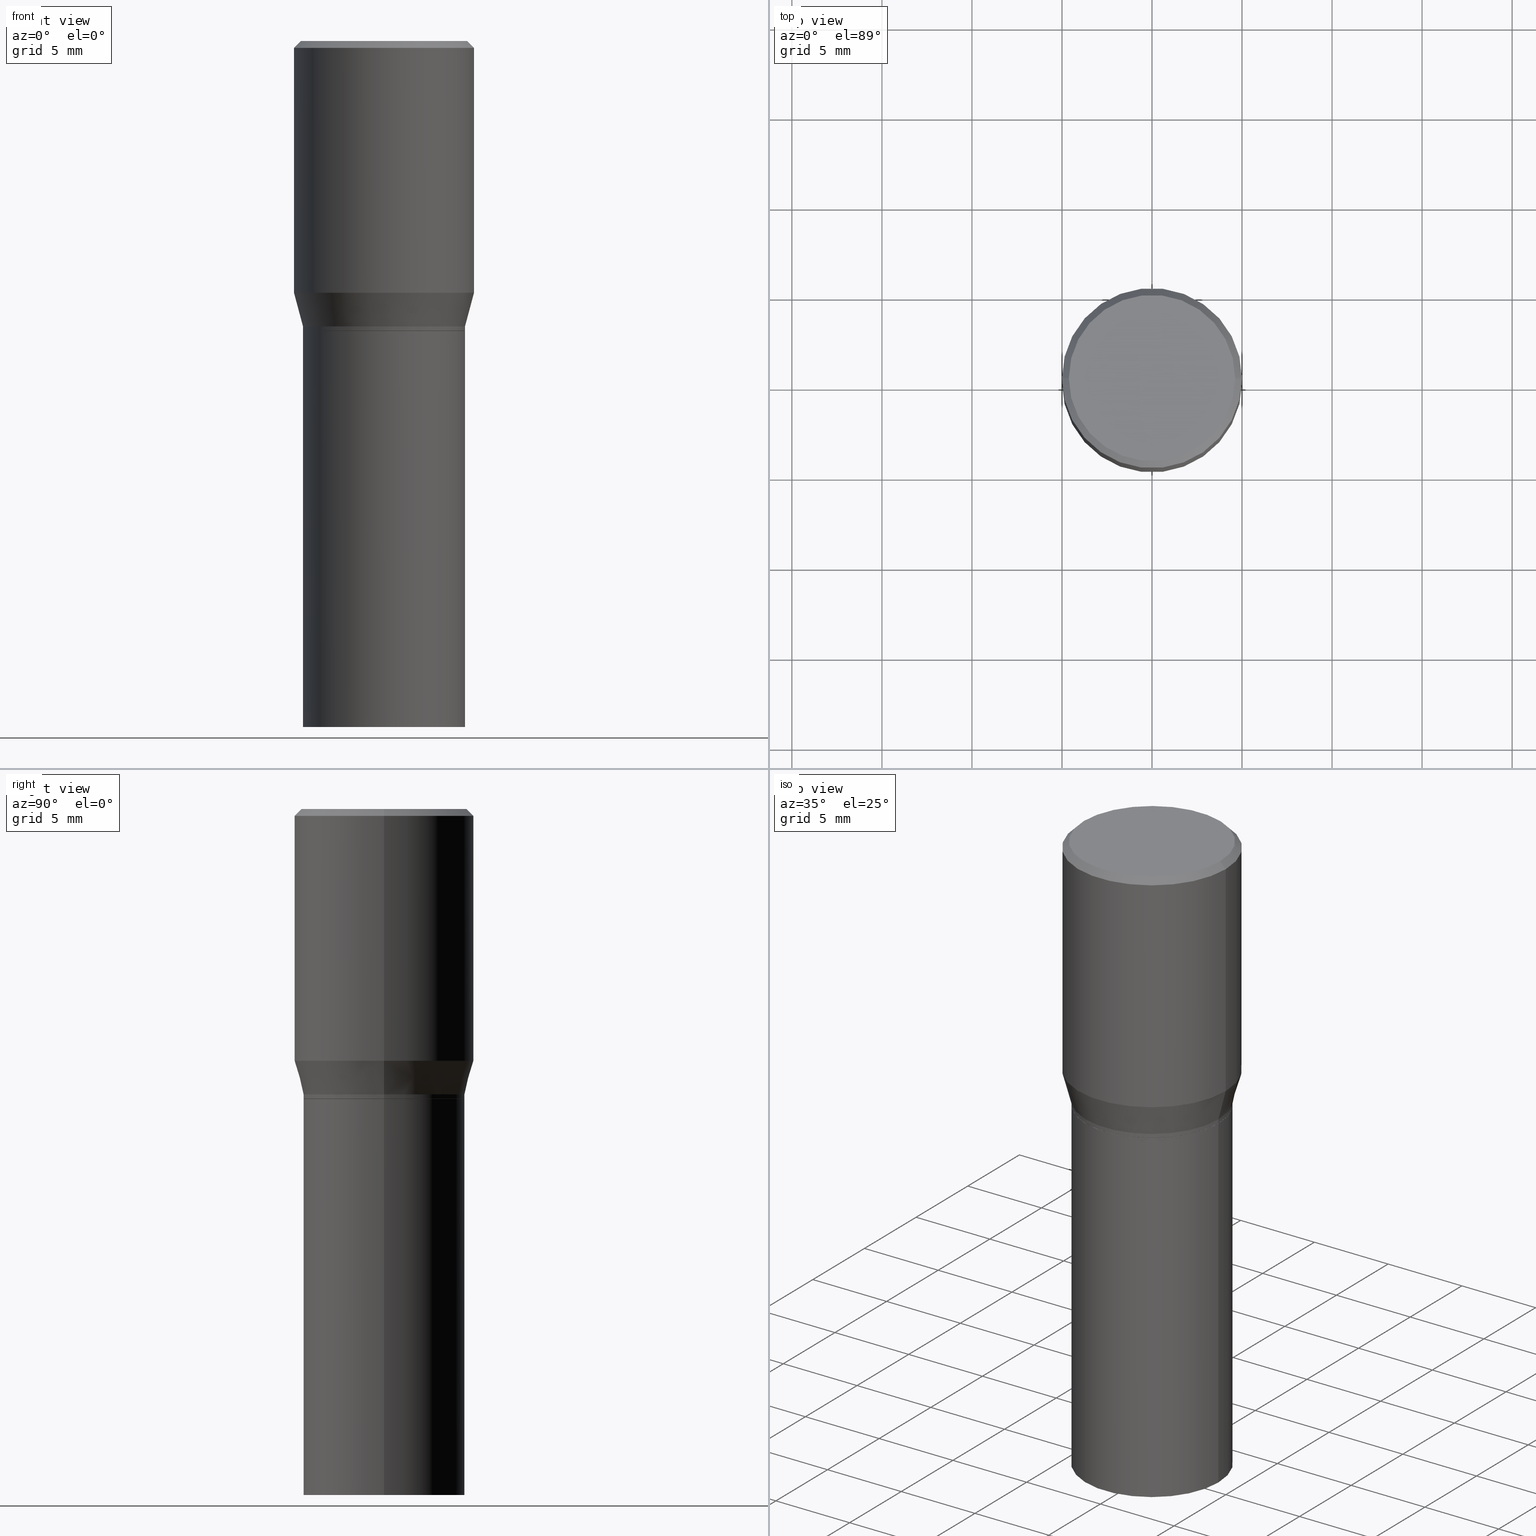
[diagram: canonical four-view strip — front | top / right | iso, engineering-drawing reading convention]
A machine part, canonical four-view strip (front | top / right | iso — engineering-drawing reading convention). The complete STEP part file that produces these views, byte-faithful:
ISO-10303-21;
HEADER;
FILE_DESCRIPTION (( 'STEP AP203' ),
    '1' );
FILE_NAME ('48768.STEP',
    '2024-03-12T19:47:20',
    ( '' ),
    ( '' ),
    'SwSTEP 2.0',
    'SolidWorks 2023',
    '' );
FILE_SCHEMA (( 'CONFIG_CONTROL_DESIGN' ));
ENDSEC;

DATA;
#1 = ORIENTED_EDGE ( 'NONE', *, *, #97, .F. ) ;
#2 = ORIENTED_EDGE ( 'NONE', *, *, #143, .T. ) ;
#3 = DIRECTION ( 'NONE',  ( -2.445468806185136597E-29, 3.491481338843145583E-15, 1.000000000000000000 ) ) ;
#4 = ADVANCED_FACE ( 'NONE', ( #147 ), #457, .F. ) ;
#5 =( NAMED_UNIT ( * ) SI_UNIT ( $, .STERADIAN. ) SOLID_ANGLE_UNIT ( ) );
#6 = VECTOR ( 'NONE', #331, 39.37007874015748143 ) ;
#7 = CARTESIAN_POINT ( 'NONE',  ( 0.000000000000000000, 0.000000000000000000, 0.000000000000000000 ) ) ;
#8 = FACE_OUTER_BOUND ( 'NONE', #197, .T. ) ;
#9 = VERTEX_POINT ( 'NONE', #292 ) ;
#10 = ORIENTED_EDGE ( 'NONE', *, *, #105, .T. ) ;
#11 = DIRECTION ( 'NONE',  ( 1.000000000000000000, 0.000000000000000000, 0.000000000000000000 ) ) ;
#12 = FACE_OUTER_BOUND ( 'NONE', #234, .T. ) ;
#13 = ADVANCED_FACE ( 'NONE', ( #183 ), #451, .T. ) ;
#14 = DIRECTION ( 'NONE',  ( 1.000000000000000000, -6.982962677686267499E-15, 0.000000000000000000 ) ) ;
#15 = DIRECTION ( 'NONE',  ( -2.445468806185136597E-29, 3.491481338843145583E-15, 1.000000000000000000 ) ) ;
#16 = APPROVAL_ROLE ( '' ) ;
#17 = VECTOR ( 'NONE', #430, 39.37007874015748143 ) ;
#18 = DIRECTION ( 'NONE',  ( -1.000000000000000000, 6.982962677686265922E-15, 0.000000000000000000 ) ) ;
#19 = ORIENTED_EDGE ( 'NONE', *, *, #386, .T. ) ;
#20 = ORIENTED_EDGE ( 'NONE', *, *, #406, .T. ) ;
#21 = AXIS2_PLACEMENT_3D ( 'NONE', #81, #401, #168 ) ;
#22 = CC_DESIGN_APPROVAL ( #441, ( #77 ) ) ;
#23 = DIRECTION ( 'NONE',  ( 1.000000000000000000, -6.982962677686265922E-15, 0.000000000000000000 ) ) ;
#24 = APPROVAL ( #112, 'UNSPECIFIED' ) ;
#25 = LINE ( 'NONE', #444, #435 ) ;
#26 = DIRECTION ( 'NONE',  ( -2.445468806185136597E-29, 3.491481338843145583E-15, 1.000000000000000000 ) ) ;
#27 = CALENDAR_DATE ( 2024, 12, 3 ) ;
#28 = DIRECTION ( 'NONE',  ( -2.445468806185136597E-29, 3.491481338843145583E-15, 1.000000000000000000 ) ) ;
#29 = AXIS2_PLACEMENT_3D ( 'NONE', #307, #174, #436 ) ;
#30 = VERTEX_POINT ( 'NONE', #93 ) ;
#31 = SECURITY_CLASSIFICATION ( '', '', #188 ) ;
#32 = ORIENTED_EDGE ( 'NONE', *, *, #406, .F. ) ;
#33 = EDGE_CURVE ( 'NONE', #172, #384, #299, .T. ) ;
#34 = VERTEX_POINT ( 'NONE', #294 ) ;
#35 = DATE_AND_TIME ( #458, #374 ) ;
#36 = ORIENTED_EDGE ( 'NONE', *, *, #251, .F. ) ;
#37 = UNCERTAINTY_MEASURE_WITH_UNIT (LENGTH_MEASURE( 1.000000000000000082E-05 ), #318, 'distance_accuracy_value', 'NONE');
#38 = CONICAL_SURFACE ( 'NONE', #263, 0.1968500000000000250, 0.7853981633974488341 ) ;
#39 = ORIENTED_EDGE ( 'NONE', *, *, #304, .F. ) ;
#40 = PERSON_AND_ORGANIZATION ( #223, #107 ) ;
#41 = ORIENTED_EDGE ( 'NONE', *, *, #304, .T. ) ;
#42 = ADVANCED_FACE ( 'NONE', ( #204 ), #46, .F. ) ;
#43 = PRODUCT_DEFINITION_SHAPE ( 'NONE', 'NONE',  #77 ) ;
#44 = ORIENTED_EDGE ( 'NONE', *, *, #179, .F. ) ;
#45 = FACE_OUTER_BOUND ( 'NONE', #418, .T. ) ;
#46 = PLANE ( 'NONE',  #94 ) ;
#47 = AXIS2_PLACEMENT_3D ( 'NONE', #284, #411, #100 ) ;
#48 = ORIENTED_EDGE ( 'NONE', *, *, #219, .F. ) ;
#49 = CARTESIAN_POINT ( 'NONE',  ( -0.1771500000000000019, 1.258726456399017493E-15, -8.713893512386565325E-30 ) ) ;
#50 = EDGE_CURVE ( 'NONE', #34, #358, #345, .T. ) ;
#51 = VERTEX_POINT ( 'NONE', #56 ) ;
#52 = DIRECTION ( 'NONE',  ( 1.000000000000000000, -6.982962677686265922E-15, 0.000000000000000000 ) ) ;
#53 = CARTESIAN_POINT ( 'NONE',  ( 1.582769352365941312E-46, -2.259775157835388046E-32, -6.472253288869456262E-18 ) ) ;
#54 = CARTESIAN_POINT ( 'NONE',  ( 1.525727988178907107E-29, -2.178335207304238928E-15, -0.6239000000000001211 ) ) ;
#55 = CARTESIAN_POINT ( 'NONE',  ( 1.525727988178907107E-29, -2.178335207304238928E-15, -0.6239000000000001211 ) ) ;
#56 = CARTESIAN_POINT ( 'NONE',  ( 0.1968500000000000250, -1.426968423185188885E-15, -0.01499999999999999944 ) ) ;
#57 = VECTOR ( 'NONE', #357, 39.37007874015748143 ) ;
#58 = DIRECTION ( 'NONE',  ( -2.445468806185136877E-29, 3.491481338843145188E-15, 1.000000000000000000 ) ) ;
#59 = VERTEX_POINT ( 'NONE', #162 ) ;
#60 = DIRECTION ( 'NONE',  ( 1.000000000000000000, -6.982962677686265922E-15, 0.000000000000000000 ) ) ;
#61 = DIRECTION ( 'NONE',  ( 0.2588190451025220717, 1.565188264969615854E-15, 0.9659258262890678681 ) ) ;
#62 = CARTESIAN_POINT ( 'NONE',  ( 3.668203209277704895E-29, -5.237222008264718177E-15, -1.500000000000000222 ) ) ;
#63 = ORIENTED_EDGE ( 'NONE', *, *, #158, .T. ) ;
#64 = AXIS2_PLACEMENT_3D ( 'NONE', #121, #273, #398 ) ;
#65 = ADVANCED_FACE ( 'NONE', ( #432 ), #268, .T. ) ;
#66 = DIRECTION ( 'NONE',  ( 1.000000000000000000, -6.982962677686267499E-15, 0.000000000000000000 ) ) ;
#67 = DATE_TIME_ROLE ( 'classification_date' ) ;
#68 = ORIENTED_EDGE ( 'NONE', *, *, #199, .F. ) ;
#69 = ORIENTED_EDGE ( 'NONE', *, *, #245, .F. ) ;
#70 = EDGE_CURVE ( 'NONE', #84, #30, #335, .T. ) ;
#71 = VECTOR ( 'NONE', #145, 39.37007874015748854 ) ;
#72 = PERSON_AND_ORGANIZATION_ROLE ( 'creator' ) ;
#73 = APPLICATION_PROTOCOL_DEFINITION ( 'international standard', 'config_control_design', 1994, #161 ) ;
#74 = ORIENTED_EDGE ( 'NONE', *, *, #348, .F. ) ;
#75 = AXIS2_PLACEMENT_3D ( 'NONE', #290, #151, #225 ) ;
#76 = AXIS2_PLACEMENT_3D ( 'NONE', #230, #236, #52 ) ;
#77 = PRODUCT_DEFINITION ( 'UNKNOWN', '', #328, #322 ) ;
#78 = CYLINDRICAL_SURFACE ( 'NONE', #312, 0.1771500000000001129 ) ;
#79 = DIRECTION ( 'NONE',  ( 1.000000000000000000, -6.982962677686265922E-15, 4.876176775795935793E-29 ) ) ;
#80 = FACE_OUTER_BOUND ( 'NONE', #375, .T. ) ;
#81 = CARTESIAN_POINT ( 'NONE',  ( 0.000000000000000000, 0.000000000000000000, 0.000000000000000000 ) ) ;
#82 = CARTESIAN_POINT ( 'NONE',  ( -0.1968500000000000250, 1.322223983019894529E-15, -0.01499999999999999944 ) ) ;
#83 = EDGE_CURVE ( 'NONE', #59, #291, #302, .T. ) ;
#84 = VERTEX_POINT ( 'NONE', #241 ) ;
#85 = FACE_OUTER_BOUND ( 'NONE', #462, .T. ) ;
#86 = DIRECTION ( 'NONE',  ( 1.000000000000000000, -6.982962677686266711E-15, 4.876176775795935793E-29 ) ) ;
#87 = CIRCLE ( 'NONE', #126, 0.1771500000000000019 ) ;
#88 = CYLINDRICAL_SURFACE ( 'NONE', #21, 0.1771500000000000019 ) ;
#89 = DIRECTION ( 'NONE',  ( -2.438088387897960049E-29, 3.491481338843145188E-15, 1.000000000000000000 ) ) ;
#90 = CARTESIAN_POINT ( 'NONE',  ( 0.1771500000000001129, -1.237031838352122986E-15, 8.638147158322505565E-30 ) ) ;
#91 = CARTESIAN_POINT ( 'NONE',  ( 1.582769352365941312E-46, -2.259775157835388046E-32, -6.472253288869456262E-18 ) ) ;
#92 = DIRECTION ( 'NONE',  ( -2.445468806185136597E-29, 3.491481338843145583E-15, 1.000000000000000000 ) ) ;
#93 = CARTESIAN_POINT ( 'NONE',  ( 0.1771500000000000019, -3.450281859044792971E-15, -0.6339000000000001300 ) ) ;
#94 = AXIS2_PLACEMENT_3D ( 'NONE', #116, #89, #79 ) ;
#95 = CIRCLE ( 'NONE', #288, 0.1771500000000000019 ) ;
#96 = PLANE ( 'NONE',  #327 ) ;
#97 = EDGE_CURVE ( 'NONE', #9, #237, #262, .T. ) ;
#98 = PERSON_AND_ORGANIZATION ( #223, #107 ) ;
#99 = AXIS2_PLACEMENT_3D ( 'NONE', #102, #186, #250 ) ;
#100 = DIRECTION ( 'NONE',  ( 1.000000000000000000, -6.982962677686266711E-15, 0.000000000000000000 ) ) ;
#101 = VERTEX_POINT ( 'NONE', #393 ) ;
#102 = CARTESIAN_POINT ( 'NONE',  ( 0.000000000000000000, 0.000000000000000000, 0.000000000000000000 ) ) ;
#103 = ORIENTED_EDGE ( 'NONE', *, *, #348, .T. ) ;
#104 = CARTESIAN_POINT ( 'NONE',  ( 0.1771500000000000852, -3.448536118375371467E-15, -0.6334000000000001851 ) ) ;
#105 = EDGE_CURVE ( 'NONE', #9, #264, #124, .T. ) ;
#106 = ORIENTED_EDGE ( 'NONE', *, *, #386, .F. ) ;
#107 = ORGANIZATION ( 'UNSPECIFIED', 'UNSPECIFIED', '' ) ;
#108 = ORIENTED_EDGE ( 'NONE', *, *, #70, .F. ) ;
#109 = CC_DESIGN_PERSON_AND_ORGANIZATION_ASSIGNMENT ( #349, #416, ( #31 ) ) ;
#110 = VERTEX_POINT ( 'NONE', #104 ) ;
#111 = AXIS2_PLACEMENT_3D ( 'NONE', #445, #138, #66 ) ;
#112 = APPROVAL_STATUS ( 'not_yet_approved' ) ;
#113 = CARTESIAN_POINT ( 'NONE',  ( 0.1968500000000000527, -1.374596203102542003E-15, 9.598753983154302260E-30 ) ) ;
#114 = CC_DESIGN_DATE_AND_TIME_ASSIGNMENT ( #35, #67, ( #31 ) ) ;
#115 = ORIENTED_EDGE ( 'NONE', *, *, #245, .T. ) ;
#116 = CARTESIAN_POINT ( 'NONE',  ( 3.576687321579069994E-29, -5.368277968210015545E-15, -1.500000000000000222 ) ) ;
#117 = DIRECTION ( 'NONE',  ( 1.000000000000000000, -6.982962677686265922E-15, 0.000000000000000000 ) ) ;
#118 = CARTESIAN_POINT ( 'NONE',  ( 1.550182676240758652E-29, -2.213250020692670577E-15, -0.6339000000000001300 ) ) ;
#119 = ORIENTED_EDGE ( 'NONE', *, *, #158, .F. ) ;
#120 = EDGE_LOOP ( 'NONE', ( #260, #36 ) ) ;
#121 = CARTESIAN_POINT ( 'NONE',  ( 1.525727988178907107E-29, -2.178335207304238928E-15, -0.6239000000000001211 ) ) ;
#122 = CARTESIAN_POINT ( 'NONE',  ( -0.1766500000000000015, -9.580762779724535881E-16, -0.6339000000000001300 ) ) ;
#123 = DIRECTION ( 'NONE',  ( -2.445468806185136597E-29, 3.491481338843145583E-15, 1.000000000000000000 ) ) ;
#124 = CIRCLE ( 'NONE', #194, 0.1818500000000000116 ) ;
#125 = DIRECTION ( 'NONE',  ( -2.445468806185136597E-29, 3.491481338843145583E-15, 1.000000000000000000 ) ) ;
#126 = AXIS2_PLACEMENT_3D ( 'NONE', #337, #240, #363 ) ;
#127 = FACE_OUTER_BOUND ( 'NONE', #160, .T. ) ;
#128 = LINE ( 'NONE', #402, #6 ) ;
#129 = ORIENTED_EDGE ( 'NONE', *, *, #372, .T. ) ;
#130 = EDGE_CURVE ( 'NONE', #172, #110, #256, .T. ) ;
#131 = FACE_OUTER_BOUND ( 'NONE', #218, .T. ) ;
#132 = CARTESIAN_POINT ( 'NONE',  ( 1.550182676240758652E-29, -2.213250020692670577E-15, -0.6339000000000001300 ) ) ;
#133 = DIMENSIONAL_EXPONENTS ( 1.000000000000000000, 0.000000000000000000, 0.000000000000000000, 0.000000000000000000, 0.000000000000000000, 0.000000000000000000, 0.000000000000000000 ) ;
#134 = CIRCLE ( 'NONE', #381, 0.1771500000000000019 ) ;
#135 = FACE_OUTER_BOUND ( 'NONE', #354, .T. ) ;
#136 = EDGE_CURVE ( 'NONE', #84, #101, #95, .T. ) ;
#137 = ORIENTED_EDGE ( 'NONE', *, *, #412, .F. ) ;
#138 = DIRECTION ( 'NONE',  ( -2.445468806185136597E-29, 3.491481338843145583E-15, 1.000000000000000000 ) ) ;
#139 = ORIENTED_EDGE ( 'NONE', *, *, #400, .T. ) ;
#140 = AXIS2_PLACEMENT_3D ( 'NONE', #440, #383, #460 ) ;
#141 = AXIS2_PLACEMENT_3D ( 'NONE', #369, #403, #206 ) ;
#142 = CIRCLE ( 'NONE', #187, 0.1771500000000001129 ) ;
#143 = EDGE_CURVE ( 'NONE', #264, #51, #128, .T. ) ;
#144 = ORIENTED_EDGE ( 'NONE', *, *, #199, .T. ) ;
#145 = DIRECTION ( 'NONE',  ( -0.2588190451025220717, 5.211531920934554197E-15, 0.9659258262890678681 ) ) ;
#146 = DATE_AND_TIME ( #380, #414 ) ;
#147 = FACE_OUTER_BOUND ( 'NONE', #120, .T. ) ;
#148 = ADVANCED_FACE ( 'NONE', ( #407 ), #338, .F. ) ;
#149 = APPROVAL_DATE_TIME ( #146, #356 ) ;
#150 = PRODUCT ( '48768', '48768', '', ( #238 ) ) ;
#151 = DIRECTION ( 'NONE',  ( -2.438088387897960049E-29, 3.491481338843145188E-15, 1.000000000000000000 ) ) ;
#152 = COORDINATED_UNIVERSAL_TIME_OFFSET ( 5, 0, .BEHIND. ) ;
#153 = APPLICATION_CONTEXT ( 'configuration controlled 3d designs of mechanical parts and assemblies' ) ;
#154 = COORDINATED_UNIVERSAL_TIME_OFFSET ( 5, 0, .BEHIND. ) ;
#155 = AXIS2_PLACEMENT_3D ( 'NONE', #276, #242, #438 ) ;
#156 = LOCAL_TIME ( 15, 47, 20.00000000000000000, #317 ) ;
#157 = EDGE_LOOP ( 'NONE', ( #10, #139 ) ) ;
#158 = EDGE_CURVE ( 'NONE', #384, #59, #270, .T. ) ;
#159 = DIRECTION ( 'NONE',  ( -2.445468806185136597E-29, 3.491481338843145583E-15, 1.000000000000000000 ) ) ;
#160 = EDGE_LOOP ( 'NONE', ( #32, #259, #41, #320 ) ) ;
#161 = APPLICATION_CONTEXT ( 'configuration controlled 3d designs of mechanical parts and assemblies' ) ;
#162 = CARTESIAN_POINT ( 'NONE',  ( -0.1771500000000000852, -9.527778236242309889E-16, -0.6334000000000001851 ) ) ;
#163 = AXIS2_PLACEMENT_3D ( 'NONE', #306, #326, #14 ) ;
#164 = ADVANCED_FACE ( 'NONE', ( #85 ), #413, .T. ) ;
#165 = CIRCLE ( 'NONE', #408, 0.1818500000000000116 ) ;
#166 = LOCAL_TIME ( 15, 47, 20.00000000000000000, #154 ) ;
#167 = DIRECTION ( 'NONE',  ( -2.445468806185136877E-29, 3.491481338843145188E-15, 1.000000000000000000 ) ) ;
#168 = DIRECTION ( 'NONE',  ( 1.000000000000000000, -6.982962677686266711E-15, 4.876176775795935793E-29 ) ) ;
#169 = MANIFOLD_SOLID_BREP ( 'Body-Move/Copy2[1]', #425 ) ;
#170 = LINE ( 'NONE', #247, #257 ) ;
#171 = CONICAL_SURFACE ( 'NONE', #228, 0.1766500000000000015, 0.7853981633974824739 ) ;
#172 = VERTEX_POINT ( 'NONE', #355 ) ;
#173 = ADVANCED_FACE ( 'NONE', ( #45 ), #38, .T. ) ;
#174 = DIRECTION ( 'NONE',  ( -2.445468806185136597E-29, 3.491481338843145583E-15, 1.000000000000000000 ) ) ;
#175 = LINE ( 'NONE', #113, #57 ) ;
#176 = DIRECTION ( 'NONE',  ( -2.445468806185136597E-29, 3.491481338843145583E-15, 1.000000000000000000 ) ) ;
#177 = LENGTH_MEASURE_WITH_UNIT ( LENGTH_MEASURE( 0.02539999999999999897 ), #282 );
#178 = ORIENTED_EDGE ( 'NONE', *, *, #192, .F. ) ;
#179 = EDGE_CURVE ( 'NONE', #34, #237, #170, .T. ) ;
#180 = CYLINDRICAL_SURFACE ( 'NONE', #420, 0.1771500000000000019 ) ;
#181 = VECTOR ( 'NONE', #167, 39.37007874015748143 ) ;
#182 = AXIS2_PLACEMENT_3D ( 'NONE', #301, #243, #365 ) ;
#183 = FACE_OUTER_BOUND ( 'NONE', #456, .T. ) ;
#184 = EDGE_LOOP ( 'NONE', ( #279, #289, #424, #137 ) ) ;
#185 = AXIS2_PLACEMENT_3D ( 'NONE', #297, #28, #117 ) ;
#186 = DIRECTION ( 'NONE',  ( -2.445468806185136597E-29, 3.491481338843145583E-15, 1.000000000000000000 ) ) ;
#187 = AXIS2_PLACEMENT_3D ( 'NONE', #55, #92, #205 ) ;
#188 = SECURITY_CLASSIFICATION_LEVEL ( 'unclassified' ) ;
#189 = CARTESIAN_POINT ( 'NONE',  ( 0.000000000000000000, 0.000000000000000000, 0.000000000000000000 ) ) ;
#190 = DATE_AND_TIME ( #27, #156 ) ;
#191 = ORIENTED_EDGE ( 'NONE', *, *, #136, .T. ) ;
#192 = EDGE_CURVE ( 'NONE', #110, #385, #305, .T. ) ;
#193 = APPROVAL_DATE_TIME ( #190, #441 ) ;
#194 = AXIS2_PLACEMENT_3D ( 'NONE', #91, #298, #347 ) ;
#195 = CIRCLE ( 'NONE', #200, 0.1968500000000000250 ) ;
#196 = LOCAL_TIME ( 15, 47, 20.00000000000000000, #364 ) ;
#197 = EDGE_LOOP ( 'NONE', ( #191, #300, #340, #108 ) ) ;
#198 = CARTESIAN_POINT ( 'NONE',  ( 1.550182676240758652E-29, -2.213250020692670577E-15, -0.6339000000000001300 ) ) ;
#199 = EDGE_CURVE ( 'NONE', #358, #34, #319, .T. ) ;
#200 = AXIS2_PLACEMENT_3D ( 'NONE', #211, #220, #23 ) ;
#201 = CC_DESIGN_SECURITY_CLASSIFICATION ( #31, ( #328 ) ) ;
#202 = ORIENTED_EDGE ( 'NONE', *, *, #400, .F. ) ;
#203 = ADVANCED_FACE ( 'NONE', ( #127 ), #323, .T. ) ;
#204 = FACE_OUTER_BOUND ( 'NONE', #439, .T. ) ;
#205 = DIRECTION ( 'NONE',  ( 1.000000000000000000, -6.982962677686265922E-15, 0.000000000000000000 ) ) ;
#206 = DIRECTION ( 'NONE',  ( 1.000000000000000000, -6.982962677686266711E-15, 0.000000000000000000 ) ) ;
#207 = CC_DESIGN_PERSON_AND_ORGANIZATION_ASSIGNMENT ( #217, #72, ( #328 ) ) ;
#208 = AXIS2_PLACEMENT_3D ( 'NONE', #198, #123, #366 ) ;
#209 = DIRECTION ( 'NONE',  ( 1.000000000000000000, -6.982962677686266711E-15, 4.876176775795935793E-29 ) ) ;
#210 = ADVANCED_FACE ( 'NONE', ( #310 ), #452, .T. ) ;
#211 = CARTESIAN_POINT ( 'NONE',  ( 3.668203209277705088E-31, -5.237222008264718399E-17, -0.01499999999999999944 ) ) ;
#212 = ORIENTED_EDGE ( 'NONE', *, *, #278, .F. ) ;
#213 = APPROVAL_PERSON_ORGANIZATION ( #303, #24, #16 ) ;
#214 = DIRECTION ( 'NONE',  ( -1.000000000000000000, 6.982962677686265922E-15, -4.876176775795935793E-29 ) ) ;
#215 = PERSON_AND_ORGANIZATION ( #223, #107 ) ;
#216 = ADVANCED_FACE ( 'NONE', ( #135 ), #280, .T. ) ;
#217 = PERSON_AND_ORGANIZATION ( #223, #107 ) ;
#218 = EDGE_LOOP ( 'NONE', ( #309, #63, #74, #269 ) ) ;
#219 = EDGE_CURVE ( 'NONE', #101, #376, #359, .T. ) ;
#220 = DIRECTION ( 'NONE',  ( -2.445468806185136597E-29, 3.491481338843145583E-15, 1.000000000000000000 ) ) ;
#221 = PERSON_AND_ORGANIZATION_ROLE ( 'creator' ) ;
#222 = CARTESIAN_POINT ( 'NONE',  ( 0.1766500000000000015, -3.446790377705949964E-15, -0.6339000000000001300 ) ) ;
#223 = PERSON ( 'UNSPECIFIED', 'UNSPECIFIED', 'UNSPECIFIED', ('UNSPECIFIED'), ('UNSPECIFIED'), ('UNSPECIFIED') ) ;
#224 = ADVANCED_FACE ( 'NONE', ( #12 ), #283, .T. ) ;
#225 = DIRECTION ( 'NONE',  ( 1.000000000000000000, -6.982962677686265922E-15, 4.876176775795935793E-29 ) ) ;
#226 = ORIENTED_EDGE ( 'NONE', *, *, #105, .F. ) ;
#227 = PERSON_AND_ORGANIZATION ( #223, #107 ) ;
#228 = AXIS2_PLACEMENT_3D ( 'NONE', #132, #3, #265 ) ;
#229 = DIRECTION ( 'NONE',  ( 0.000000000000000000, 0.000000000000000000, 1.000000000000000000 ) ) ;
#230 = CARTESIAN_POINT ( 'NONE',  ( 1.525727988178907107E-29, -2.178335207304238928E-15, -0.6239000000000001211 ) ) ;
#231 = ADVANCED_FACE ( 'NONE', ( #254 ), #96, .F. ) ;
#232 = DIRECTION ( 'NONE',  ( -0.7071067811865479058, 2.468850131082261005E-15, -0.7071067811865471286 ) ) ;
#233 = CIRCLE ( 'NONE', #64, 0.1771500000000001129 ) ;
#234 = EDGE_LOOP ( 'NONE', ( #44, #446, #19, #267 ) ) ;
#235 =( NAMED_UNIT ( * ) PLANE_ANGLE_UNIT ( ) SI_UNIT ( $, .RADIAN. ) );
#236 = DIRECTION ( 'NONE',  ( -2.445468806185136597E-29, 3.491481338843145583E-15, 1.000000000000000000 ) ) ;
#237 = VERTEX_POINT ( 'NONE', #379 ) ;
#238 = MECHANICAL_CONTEXT ( 'NONE', #161, 'mechanical' ) ;
#239 = EDGE_CURVE ( 'NONE', #101, #84, #134, .T. ) ;
#240 = DIRECTION ( 'NONE',  ( -2.445468806185136597E-29, 3.491481338843145583E-15, 1.000000000000000000 ) ) ;
#241 = CARTESIAN_POINT ( 'NONE',  ( 0.1771500000000000019, -6.474253846616840571E-15, -1.500000000000000222 ) ) ;
#242 = DIRECTION ( 'NONE',  ( 2.445468806185136597E-29, -3.491481338843145583E-15, -1.000000000000000000 ) ) ;
#243 = DIRECTION ( 'NONE',  ( 2.438088387897960049E-29, -3.491481338843145188E-15, -1.000000000000000000 ) ) ;
#244 = CARTESIAN_POINT ( 'NONE',  ( 0.1968500000000000527, -3.296232811127031185E-15, -0.5503785990908939274 ) ) ;
#245 = EDGE_CURVE ( 'NONE', #51, #237, #195, .T. ) ;
#246 = EDGE_LOOP ( 'NONE', ( #274, #226, #370, #252 ) ) ;
#247 = CARTESIAN_POINT ( 'NONE',  ( -0.1968500000000000527, 1.398703375343757590E-15, -9.682923725166785079E-30 ) ) ;
#248 = AXIS2_PLACEMENT_3D ( 'NONE', #7, #125, #275 ) ;
#249 = ORIENTED_EDGE ( 'NONE', *, *, #239, .F. ) ;
#250 = DIRECTION ( 'NONE',  ( 1.000000000000000000, -6.982962677686266711E-15, 4.876176775795935793E-29 ) ) ;
#251 = EDGE_CURVE ( 'NONE', #384, #172, #388, .T. ) ;
#252 = ORIENTED_EDGE ( 'NONE', *, *, #311, .T. ) ;
#253 = APPROVAL_ROLE ( '' ) ;
#254 = FACE_OUTER_BOUND ( 'NONE', #387, .T. ) ;
#255 = ORIENTED_EDGE ( 'NONE', *, *, #372, .F. ) ;
#256 = LINE ( 'NONE', #222, #463 ) ;
#257 = VECTOR ( 'NONE', #271, 39.37007874015748143 ) ;
#258 = APPROVAL_PERSON_ORGANIZATION ( #98, #356, #455 ) ;
#259 = ORIENTED_EDGE ( 'NONE', *, *, #412, .T. ) ;
#260 = ORIENTED_EDGE ( 'NONE', *, *, #33, .F. ) ;
#261 = CARTESIAN_POINT ( 'NONE',  ( 0.000000000000000000, 0.000000000000000000, 0.000000000000000000 ) ) ;
#262 = LINE ( 'NONE', #82, #308 ) ;
#263 = AXIS2_PLACEMENT_3D ( 'NONE', #368, #334, #18 ) ;
#264 = VERTEX_POINT ( 'NONE', #447 ) ;
#265 = DIRECTION ( 'NONE',  ( 1.000000000000000000, -6.982962677686267499E-15, 0.000000000000000000 ) ) ;
#266 = ORIENTED_EDGE ( 'NONE', *, *, #83, .T. ) ;
#267 = ORIENTED_EDGE ( 'NONE', *, *, #311, .F. ) ;
#268 = CYLINDRICAL_SURFACE ( 'NONE', #248, 0.1771500000000001129 ) ;
#269 = ORIENTED_EDGE ( 'NONE', *, *, #130, .F. ) ;
#270 = LINE ( 'NONE', #122, #373 ) ;
#271 = DIRECTION ( 'NONE',  ( -2.445468806185136877E-29, 3.491481338843145188E-15, 1.000000000000000000 ) ) ;
#272 = CIRCLE ( 'NONE', #185, 0.1968500000000000250 ) ;
#273 = DIRECTION ( 'NONE',  ( -2.445468806185136597E-29, 3.491481338843145583E-15, 1.000000000000000000 ) ) ;
#274 = ORIENTED_EDGE ( 'NONE', *, *, #143, .F. ) ;
#275 = DIRECTION ( 'NONE',  ( 1.000000000000000000, -6.982962677686266711E-15, 4.876176775795935793E-29 ) ) ;
#276 = CARTESIAN_POINT ( 'NONE',  ( 3.668203209277705088E-31, -5.237222008264718399E-17, -0.01499999999999999944 ) ) ;
#277 = CARTESIAN_POINT ( 'NONE',  ( 0.000000000000000000, 0.000000000000000000, 0.000000000000000000 ) ) ;
#278 = EDGE_CURVE ( 'NONE', #59, #110, #295, .T. ) ;
#279 = ORIENTED_EDGE ( 'NONE', *, *, #83, .F. ) ;
#280 = CYLINDRICAL_SURFACE ( 'NONE', #346, 0.1968500000000000527 ) ;
#281 = LINE ( 'NONE', #415, #71 ) ;
#282 =( LENGTH_UNIT ( ) NAMED_UNIT ( * ) SI_UNIT ( $, .METRE. ) );
#283 = CYLINDRICAL_SURFACE ( 'NONE', #99, 0.1968500000000000527 ) ;
#284 = CARTESIAN_POINT ( 'NONE',  ( 1.548959941837665850E-29, -2.211504280023249073E-15, -0.6334000000000001851 ) ) ;
#285 = CLOSED_SHELL ( 'NONE', ( #343, #314, #173, #216, #164, #203, #224, #210, #148, #4, #13, #65 ) ) ;
#286 = DIRECTION ( 'NONE',  ( -2.445468806185136597E-29, 3.491481338843145583E-15, 1.000000000000000000 ) ) ;
#287 = PERSON_AND_ORGANIZATION_ROLE ( 'design_supplier' ) ;
#288 = AXIS2_PLACEMENT_3D ( 'NONE', #421, #465, #423 ) ;
#289 = ORIENTED_EDGE ( 'NONE', *, *, #278, .T. ) ;
#290 = CARTESIAN_POINT ( 'NONE',  ( 1.550182676240758652E-29, -2.213250020692670577E-15, -0.6339000000000001300 ) ) ;
#291 = VERTEX_POINT ( 'NONE', #344 ) ;
#292 = CARTESIAN_POINT ( 'NONE',  ( -0.1818500000000000116, 1.296037872978570989E-15, -6.472253288878428014E-18 ) ) ;
#293 = DIRECTION ( 'NONE',  ( 2.438088387897960049E-29, -3.491481338843145188E-15, -1.000000000000000000 ) ) ;
#294 = CARTESIAN_POINT ( 'NONE',  ( -0.1968500000000000527, -5.229332326807317894E-16, -0.5503785990908939274 ) ) ;
#295 = CIRCLE ( 'NONE', #47, 0.1771500000000000852 ) ;
#296 = CALENDAR_DATE ( 2024, 12, 3 ) ;
#297 = CARTESIAN_POINT ( 'NONE',  ( 3.668203209277705088E-31, -5.237222008264718399E-17, -0.01499999999999999944 ) ) ;
#298 = DIRECTION ( 'NONE',  ( -2.445468806185136597E-29, 3.491481338843145583E-15, 1.000000000000000000 ) ) ;
#299 = CIRCLE ( 'NONE', #140, 0.1766500000000000015 ) ;
#300 = ORIENTED_EDGE ( 'NONE', *, *, #219, .T. ) ;
#301 = CARTESIAN_POINT ( 'NONE',  ( 1.269851762937247450E-15, 0.1818500000000000116, -6.381620081130607218E-16 ) ) ;
#302 = LINE ( 'NONE', #392, #17 ) ;
#303 = PERSON_AND_ORGANIZATION ( #223, #107 ) ;
#304 = EDGE_CURVE ( 'NONE', #385, #358, #25, .T. ) ;
#305 = LINE ( 'NONE', #90, #336 ) ;
#306 = CARTESIAN_POINT ( 'NONE',  ( 1.345933695668656235E-29, -1.921636608024489183E-15, -0.5503785990908939274 ) ) ;
#307 = CARTESIAN_POINT ( 'NONE',  ( 1.345933695668656235E-29, -1.921636608024489183E-15, -0.5503785990908939274 ) ) ;
#308 = VECTOR ( 'NONE', #232, 39.37007874015748143 ) ;
#309 = ORIENTED_EDGE ( 'NONE', *, *, #33, .T. ) ;
#310 = FACE_OUTER_BOUND ( 'NONE', #246, .T. ) ;
#311 = EDGE_CURVE ( 'NONE', #237, #51, #272, .T. ) ;
#312 = AXIS2_PLACEMENT_3D ( 'NONE', #261, #395, #86 ) ;
#313 = CARTESIAN_POINT ( 'NONE',  ( 0.000000000000000000, 0.000000000000000000, 0.000000000000000000 ) ) ;
#314 = ADVANCED_FACE ( 'NONE', ( #131 ), #171, .T. ) ;
#315 = DIRECTION ( 'NONE',  ( 1.000000000000000000, -6.982962677686266711E-15, 0.000000000000000000 ) ) ;
#316 = ORIENTED_EDGE ( 'NONE', *, *, #239, .T. ) ;
#317 = COORDINATED_UNIVERSAL_TIME_OFFSET ( 5, 0, .BEHIND. ) ;
#318 =( CONVERSION_BASED_UNIT ( 'INCH', #177 ) LENGTH_UNIT ( ) NAMED_UNIT ( #133 ) );
#319 = CIRCLE ( 'NONE', #29, 0.1968500000000000527 ) ;
#320 = ORIENTED_EDGE ( 'NONE', *, *, #50, .F. ) ;
#321 = COORDINATED_UNIVERSAL_TIME_OFFSET ( 5, 0, .BEHIND. ) ;
#322 = DESIGN_CONTEXT ( 'detailed design', #153, 'design' ) ;
#323 = CONICAL_SURFACE ( 'NONE', #433, 0.1771500000000001129, 0.2617993877991508511 ) ;
#324 = PERSON_AND_ORGANIZATION_ROLE ( 'design_owner' ) ;
#325 = CARTESIAN_POINT ( 'NONE',  ( 0.1771500000000001129, -3.415367045656361716E-15, -0.6239000000000001211 ) ) ;
#326 = DIRECTION ( 'NONE',  ( -2.445468806185136597E-29, 3.491481338843145583E-15, 1.000000000000000000 ) ) ;
#327 = AXIS2_PLACEMENT_3D ( 'NONE', #371, #293, #214 ) ;
#328 = PRODUCT_DEFINITION_FORMATION_WITH_SPECIFIED_SOURCE ( 'ANY', '', #150, .NOT_KNOWN. ) ;
#329 = PRODUCT_RELATED_PRODUCT_CATEGORY ( 'detail', '', ( #150 ) ) ;
#330 = DATE_AND_TIME ( #429, #196 ) ;
#331 = DIRECTION ( 'NONE',  ( 0.7071067811865479058, -7.319954787623257623E-15, -0.7071067811865471286 ) ) ;
#332 = DIRECTION ( 'NONE',  ( -2.445468806185136877E-29, 3.491481338843145188E-15, 1.000000000000000000 ) ) ;
#333 = APPROVAL_DATE_TIME ( #330, #24 ) ;
#334 = DIRECTION ( 'NONE',  ( 2.445468806185136597E-29, -3.491481338843145583E-15, -1.000000000000000000 ) ) ;
#335 = LINE ( 'NONE', #399, #181 ) ;
#336 = VECTOR ( 'NONE', #58, 39.37007874015748143 ) ;
#337 = CARTESIAN_POINT ( 'NONE',  ( 1.550182676240758652E-29, -2.213250020692670577E-15, -0.6339000000000001300 ) ) ;
#338 = PLANE ( 'NONE',  #182 ) ;
#339 = CARTESIAN_POINT ( 'NONE',  ( -0.1766500000000000015, -9.554270507983421899E-16, -0.6339000000000001300 ) ) ;
#340 = ORIENTED_EDGE ( 'NONE', *, *, #422, .F. ) ;
#341 = ORIENTED_EDGE ( 'NONE', *, *, #251, .T. ) ;
#342 = FACE_OUTER_BOUND ( 'NONE', #404, .T. ) ;
#343 = ADVANCED_FACE ( 'NONE', ( #80 ), #78, .T. ) ;
#344 = CARTESIAN_POINT ( 'NONE',  ( -0.1771500000000001129, -7.212709917929761191E-16, -0.6239000000000001211 ) ) ;
#345 = CIRCLE ( 'NONE', #163, 0.1968500000000000527 ) ;
#346 = AXIS2_PLACEMENT_3D ( 'NONE', #277, #405, #209 ) ;
#347 = DIRECTION ( 'NONE',  ( 1.000000000000000000, -6.982962677686266711E-15, 4.876336753188190607E-29 ) ) ;
#348 = EDGE_CURVE ( 'NONE', #110, #59, #443, .T. ) ;
#349 = PERSON_AND_ORGANIZATION ( #223, #107 ) ;
#350 = DIRECTION ( 'NONE',  ( 0.7071067811865715536, -2.468850131082509496E-15, 0.7071067811865232589 ) ) ;
#351 = CC_DESIGN_DATE_AND_TIME_ASSIGNMENT ( #466, #353, ( #77 ) ) ;
#352 = APPROVAL_PERSON_ORGANIZATION ( #40, #441, #253 ) ;
#353 = DATE_TIME_ROLE ( 'creation_date' ) ;
#354 = EDGE_LOOP ( 'NONE', ( #144, #419, #69, #106 ) ) ;
#355 = CARTESIAN_POINT ( 'NONE',  ( 0.1766500000000000015, -3.446790377705949964E-15, -0.6339000000000001300 ) ) ;
#356 = APPROVAL ( #431, 'UNSPECIFIED' ) ;
#357 = DIRECTION ( 'NONE',  ( -2.445468806185136877E-29, 3.491481338843145188E-15, 1.000000000000000000 ) ) ;
#358 = VERTEX_POINT ( 'NONE', #244 ) ;
#359 = LINE ( 'NONE', #49, #367 ) ;
#360 =( GEOMETRIC_REPRESENTATION_CONTEXT ( 3 ) GLOBAL_UNCERTAINTY_ASSIGNED_CONTEXT ( ( #37 ) ) GLOBAL_UNIT_ASSIGNED_CONTEXT ( ( #318, #235, #5 ) ) REPRESENTATION_CONTEXT ( 'NONE', 'WORKASPACE' ) );
#361 = ORIENTED_EDGE ( 'NONE', *, *, #70, .T. ) ;
#362 = CARTESIAN_POINT ( 'NONE',  ( -0.1771500000000000019, -2.466509558079677081E-15, -0.6339000000000001300 ) ) ;
#363 = DIRECTION ( 'NONE',  ( 1.000000000000000000, -6.982962677686266711E-15, 0.000000000000000000 ) ) ;
#364 = COORDINATED_UNIVERSAL_TIME_OFFSET ( 5, 0, .BEHIND. ) ;
#365 = DIRECTION ( 'NONE',  ( -1.000000000000000000, 6.982962677686265922E-15, -4.876176775795935793E-29 ) ) ;
#366 = DIRECTION ( 'NONE',  ( 1.000000000000000000, -6.982962677686266711E-15, 0.000000000000000000 ) ) ;
#367 = VECTOR ( 'NONE', #332, 39.37007874015748143 ) ;
#368 = CARTESIAN_POINT ( 'NONE',  ( 3.668203209277705088E-31, -5.237222008264718399E-17, -0.01499999999999999944 ) ) ;
#369 = CARTESIAN_POINT ( 'NONE',  ( 1.548959941837665850E-29, -2.211504280023249073E-15, -0.6334000000000001851 ) ) ;
#370 = ORIENTED_EDGE ( 'NONE', *, *, #97, .T. ) ;
#371 = CARTESIAN_POINT ( 'NONE',  ( 1.237031838352137579E-15, 0.1771499999999977815, -0.6339000000000009072 ) ) ;
#372 = EDGE_CURVE ( 'NONE', #376, #30, #426, .T. ) ;
#373 = VECTOR ( 'NONE', #394, 39.37007874015748854 ) ;
#374 = LOCAL_TIME ( 15, 47, 20.00000000000000000, #321 ) ;
#375 = EDGE_LOOP ( 'NONE', ( #103, #266, #437, #178 ) ) ;
#376 = VERTEX_POINT ( 'NONE', #362 ) ;
#377 = APPLICATION_PROTOCOL_DEFINITION ( 'international standard', 'config_control_design', 1994, #153 ) ;
#378 = ORIENTED_EDGE ( 'NONE', *, *, #130, .T. ) ;
#379 = CARTESIAN_POINT ( 'NONE',  ( -0.1968500000000000250, 4.116989612901891144E-16, -0.01499999999999999944 ) ) ;
#380 = CALENDAR_DATE ( 2024, 12, 3 ) ;
#381 = AXIS2_PLACEMENT_3D ( 'NONE', #62, #26, #315 ) ;
#382 = PERSON_AND_ORGANIZATION ( #223, #107 ) ;
#383 = DIRECTION ( 'NONE',  ( -2.445468806185136597E-29, 3.491481338843145583E-15, 1.000000000000000000 ) ) ;
#384 = VERTEX_POINT ( 'NONE', #339 ) ;
#385 = VERTEX_POINT ( 'NONE', #325 ) ;
#386 = EDGE_CURVE ( 'NONE', #358, #51, #175, .T. ) ;
#387 = EDGE_LOOP ( 'NONE', ( #453, #129 ) ) ;
#388 = CIRCLE ( 'NONE', #111, 0.1766500000000000015 ) ;
#389 = AXIS2_PLACEMENT_3D ( 'NONE', #189, #229, #11 ) ;
#390 = DIRECTION ( 'NONE',  ( 1.000000000000000000, -6.982962677686267499E-15, 0.000000000000000000 ) ) ;
#391 = ORIENTED_EDGE ( 'NONE', *, *, #136, .F. ) ;
#392 = CARTESIAN_POINT ( 'NONE',  ( -0.1771500000000001129, 1.258726456399018282E-15, -8.713893512386570931E-30 ) ) ;
#393 = CARTESIAN_POINT ( 'NONE',  ( -0.1771500000000000019, -2.466509558079677081E-15, -1.500000000000000222 ) ) ;
#394 = DIRECTION ( 'NONE',  ( -0.7071067811865715536, 7.493145998870439357E-15, 0.7071067811865232589 ) ) ;
#395 = DIRECTION ( 'NONE',  ( -2.445468806185136597E-29, 3.491481338843145583E-15, 1.000000000000000000 ) ) ;
#396 = DIRECTION ( 'NONE',  ( 1.000000000000000000, -6.982962677686266711E-15, 4.876176775795935793E-29 ) ) ;
#397 = CC_DESIGN_APPROVAL ( #24, ( #31 ) ) ;
#398 = DIRECTION ( 'NONE',  ( 1.000000000000000000, -6.982962677686265922E-15, 0.000000000000000000 ) ) ;
#399 = CARTESIAN_POINT ( 'NONE',  ( 0.1771500000000000019, -1.237031838352122197E-15, 8.638147158322499960E-30 ) ) ;
#400 = EDGE_CURVE ( 'NONE', #264, #9, #165, .T. ) ;
#401 = DIRECTION ( 'NONE',  ( -2.445468806185136597E-29, 3.491481338843145583E-15, 1.000000000000000000 ) ) ;
#402 = CARTESIAN_POINT ( 'NONE',  ( 0.1968500000000000250, -1.402861250943973297E-15, -0.01499999999999999944 ) ) ;
#403 = DIRECTION ( 'NONE',  ( -2.445468806185136597E-29, 3.491481338843145583E-15, 1.000000000000000000 ) ) ;
#404 = EDGE_LOOP ( 'NONE', ( #48, #316, #361, #255 ) ) ;
#405 = DIRECTION ( 'NONE',  ( -2.445468806185136597E-29, 3.491481338843145583E-15, 1.000000000000000000 ) ) ;
#406 = EDGE_CURVE ( 'NONE', #291, #34, #281, .T. ) ;
#407 = FACE_OUTER_BOUND ( 'NONE', #157, .T. ) ;
#408 = AXIS2_PLACEMENT_3D ( 'NONE', #53, #286, #454 ) ;
#409 = ADVANCED_FACE ( 'NONE', ( #342 ), #180, .T. ) ;
#410 = ADVANCED_FACE ( 'NONE', ( #8 ), #88, .T. ) ;
#411 = DIRECTION ( 'NONE',  ( -2.445468806185136597E-29, 3.491481338843145583E-15, 1.000000000000000000 ) ) ;
#412 = EDGE_CURVE ( 'NONE', #291, #385, #233, .T. ) ;
#413 = CONICAL_SURFACE ( 'NONE', #76, 0.1771500000000001129, 0.2617993877991508511 ) ;
#414 = LOCAL_TIME ( 15, 47, 20.00000000000000000, #152 ) ;
#415 = CARTESIAN_POINT ( 'NONE',  ( -0.1771500000000001129, -9.196087509052206461E-16, -0.6239000000000001211 ) ) ;
#416 = PERSON_AND_ORGANIZATION_ROLE ( 'classification_officer' ) ;
#417 = ORIENTED_EDGE ( 'NONE', *, *, #428, .T. ) ;
#418 = EDGE_LOOP ( 'NONE', ( #202, #2, #115, #1 ) ) ;
#419 = ORIENTED_EDGE ( 'NONE', *, *, #179, .T. ) ;
#420 = AXIS2_PLACEMENT_3D ( 'NONE', #313, #15, #396 ) ;
#421 = CARTESIAN_POINT ( 'NONE',  ( 3.668203209277704895E-29, -5.237222008264718177E-15, -1.500000000000000222 ) ) ;
#422 = EDGE_CURVE ( 'NONE', #30, #376, #87, .T. ) ;
#423 = DIRECTION ( 'NONE',  ( 1.000000000000000000, -6.982962677686266711E-15, 0.000000000000000000 ) ) ;
#424 = ORIENTED_EDGE ( 'NONE', *, *, #192, .T. ) ;
#425 = CLOSED_SHELL ( 'NONE', ( #410, #42, #409, #231 ) ) ;
#426 = CIRCLE ( 'NONE', #208, 0.1771500000000000019 ) ;
#427 = CC_DESIGN_APPROVAL ( #356, ( #328 ) ) ;
#428 = EDGE_CURVE ( 'NONE', #385, #291, #142, .T. ) ;
#429 = CALENDAR_DATE ( 2024, 12, 3 ) ;
#430 = DIRECTION ( 'NONE',  ( -2.445468806185136877E-29, 3.491481338843145188E-15, 1.000000000000000000 ) ) ;
#431 = APPROVAL_STATUS ( 'not_yet_approved' ) ;
#432 = FACE_OUTER_BOUND ( 'NONE', #184, .T. ) ;
#433 = AXIS2_PLACEMENT_3D ( 'NONE', #54, #176, #60 ) ;
#434 = CC_DESIGN_PERSON_AND_ORGANIZATION_ASSIGNMENT ( #227, #324, ( #150 ) ) ;
#435 = VECTOR ( 'NONE', #61, 39.37007874015748854 ) ;
#436 = DIRECTION ( 'NONE',  ( 1.000000000000000000, -6.982962677686267499E-15, 0.000000000000000000 ) ) ;
#437 = ORIENTED_EDGE ( 'NONE', *, *, #428, .F. ) ;
#438 = DIRECTION ( 'NONE',  ( -1.000000000000000000, 6.982962677686265922E-15, 0.000000000000000000 ) ) ;
#439 = EDGE_LOOP ( 'NONE', ( #391, #249 ) ) ;
#440 = CARTESIAN_POINT ( 'NONE',  ( 1.550182676240758652E-29, -2.213250020692670577E-15, -0.6339000000000001300 ) ) ;
#441 = APPROVAL ( #464, 'UNSPECIFIED' ) ;
#442 = AXIS2_PLACEMENT_3D ( 'NONE', #118, #159, #390 ) ;
#443 = CIRCLE ( 'NONE', #141, 0.1771500000000000852 ) ;
#444 = CARTESIAN_POINT ( 'NONE',  ( 0.1771500000000001129, -3.415367045656361716E-15, -0.6239000000000001211 ) ) ;
#445 = CARTESIAN_POINT ( 'NONE',  ( 1.550182676240758652E-29, -2.213250020692670577E-15, -0.6339000000000001300 ) ) ;
#446 = ORIENTED_EDGE ( 'NONE', *, *, #50, .T. ) ;
#447 = CARTESIAN_POINT ( 'NONE',  ( 0.1818500000000000116, -1.325221405919363357E-15, -6.472253288860382051E-18 ) ) ;
#448 = SHAPE_DEFINITION_REPRESENTATION ( #43, #461 ) ;
#449 = MANIFOLD_SOLID_BREP ( 'Body-Move/Copy2[2]', #285 ) ;
#450 = CC_DESIGN_PERSON_AND_ORGANIZATION_ASSIGNMENT ( #215, #287, ( #328 ) ) ;
#451 = CONICAL_SURFACE ( 'NONE', #442, 0.1766500000000000015, 0.7853981633974824739 ) ;
#452 = CONICAL_SURFACE ( 'NONE', #155, 0.1968500000000000250, 0.7853981633974488341 ) ;
#453 = ORIENTED_EDGE ( 'NONE', *, *, #422, .T. ) ;
#454 = DIRECTION ( 'NONE',  ( 1.000000000000000000, -6.982962677686266711E-15, 4.876336753188190607E-29 ) ) ;
#455 = APPROVAL_ROLE ( '' ) ;
#456 = EDGE_LOOP ( 'NONE', ( #119, #341, #378, #212 ) ) ;
#457 = PLANE ( 'NONE',  #75 ) ;
#458 = CALENDAR_DATE ( 2024, 12, 3 ) ;
#459 = CC_DESIGN_PERSON_AND_ORGANIZATION_ASSIGNMENT ( #382, #221, ( #77 ) ) ;
#460 = DIRECTION ( 'NONE',  ( 1.000000000000000000, -6.982962677686267499E-15, 0.000000000000000000 ) ) ;
#461 = ADVANCED_BREP_SHAPE_REPRESENTATION ( '48768', ( #169, #449, #389 ), #360 ) ;
#462 = EDGE_LOOP ( 'NONE', ( #417, #20, #68, #39 ) ) ;
#463 = VECTOR ( 'NONE', #350, 39.37007874015748854 ) ;
#464 = APPROVAL_STATUS ( 'not_yet_approved' ) ;
#465 = DIRECTION ( 'NONE',  ( -2.445468806185136597E-29, 3.491481338843145583E-15, 1.000000000000000000 ) ) ;
#466 = DATE_AND_TIME ( #296, #166 ) ;
ENDSEC;
END-ISO-10303-21;
